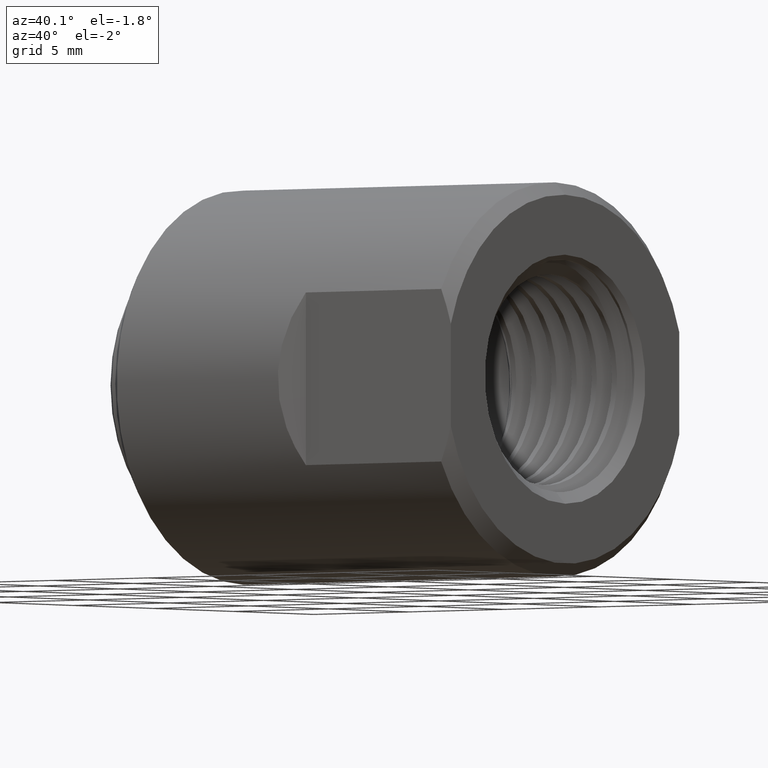
[diagram: clean part render]
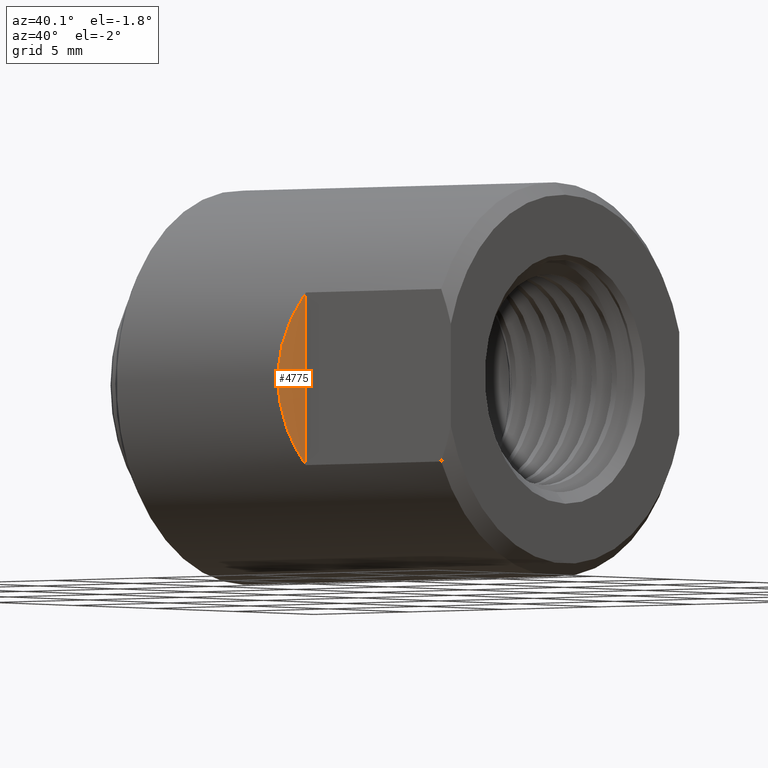
[diagram: same view with one face highlighted and labeled with its STEP entity id]
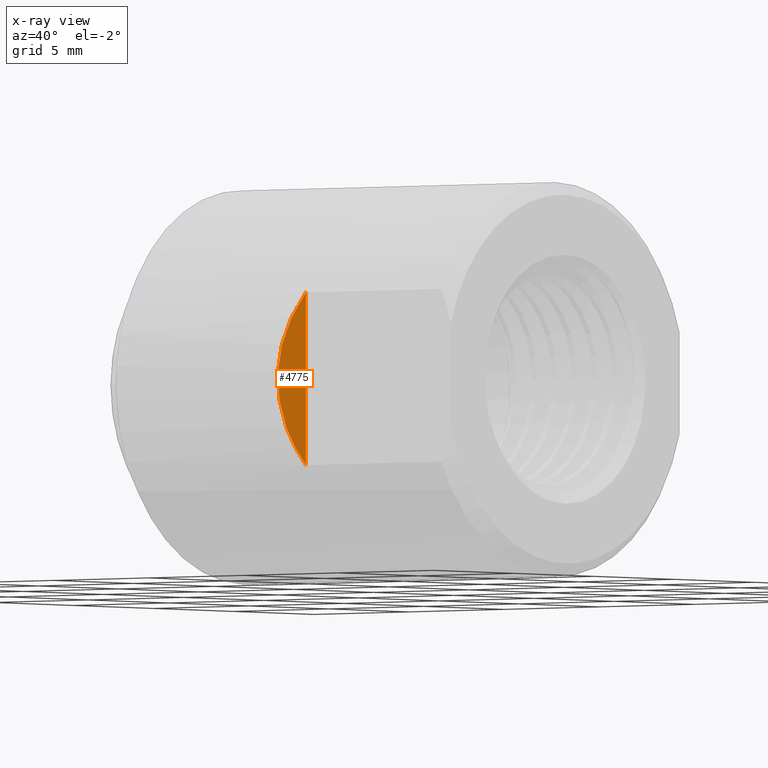
[diagram: x-ray of the same camera — body ghosted, the highlighted face saturated]
A machine part, auxiliary view. The second image highlights one B-rep face of the part: STEP entity #4775.
The next image is the same camera in x-ray: the body ghosted, the highlighted face saturated — about 0% of this face is hidden behind the body in this view.
In plain terms, the highlighted planar face has unit normal (-0.7071, 0.7071, 0).
Its self-contained STEP definition (entity closure, byte-faithful):
#980 = VERTEX_POINT ( 'NONE', #3332 ) ;
#1222 = EDGE_CURVE ( 'NONE', #3728, #980, #2930, .T. ) ;
#1496 = CARTESIAN_POINT ( 'NONE',  ( 0.2502422680412371703, -0.3232577319587630060, -0.04882472485371666671 ) ) ;
#2653 = ORIENTED_EDGE ( 'NONE', *, *, #10349, .T. ) ;
#2930 =( BOUNDED_CURVE ( )  B_SPLINE_CURVE ( 3, ( #11089, #11970, #1496, #7005 ),
 .UNSPECIFIED., .F., .F. ) 
 B_SPLINE_CURVE_WITH_KNOTS ( ( 4, 4 ),
 ( 5.829957573947540439, 6.736413040411632025 ),
 .UNSPECIFIED. ) 
 CURVE ( )  GEOMETRIC_REPRESENTATION_ITEM ( )  RATIONAL_B_SPLINE_CURVE ( ( 1.000000000000000000, 0.9326923076923074873, 0.9326923076923074873, 1.000000000000000000 ) ) 
 REPRESENTATION_ITEM ( '' )  );
#3173 = AXIS2_PLACEMENT_3D ( 'NONE', #12456, #6659, #7548 ) ;
#3332 = CARTESIAN_POINT ( 'NONE',  ( 0.2929999999999999272, -0.2804999999999999716, -0.1366153358887647884 ) ) ;
#3728 = VERTEX_POINT ( 'NONE', #8533 ) ;
#4775 = ADVANCED_FACE ( 'NONE', ( #11386 ), #8506, .F. ) ;
#5751 = CARTESIAN_POINT ( 'NONE',  ( 0.2929999999999999272, -0.2804999999999999716, -0.3119999999999999996 ) ) ;
#6108 = VECTOR ( 'NONE', #11320, 39.37007874015748143 ) ;
#6161 = EDGE_LOOP ( 'NONE', ( #7828, #2653 ) ) ;
#6659 = DIRECTION ( 'NONE',  ( -0.7071067811865499042, 0.7071067811865452413, 0.0000000000000000000 ) ) ;
#7005 = CARTESIAN_POINT ( 'NONE',  ( 0.2929999999999999272, -0.2804999999999999716, -0.1366153358887647884 ) ) ;
#7548 = DIRECTION ( 'NONE',  ( -0.7071067811865451302, -0.7071067811865497932, 0.0000000000000000000 ) ) ;
#7828 = ORIENTED_EDGE ( 'NONE', *, *, #1222, .T. ) ;
#8506 = PLANE ( 'NONE',  #3173 ) ;
#8533 = CARTESIAN_POINT ( 'NONE',  ( 0.2929999999999999272, -0.2804999999999999716, 0.1366153358887647884 ) ) ;
#8620 = LINE ( 'NONE', #5751, #6108 ) ;
#10349 = EDGE_CURVE ( 'NONE', #980, #3728, #8620, .T. ) ;
#11089 = CARTESIAN_POINT ( 'NONE',  ( 0.2929999999999999272, -0.2804999999999999716, 0.1366153358887647884 ) ) ;
#11320 = DIRECTION ( 'NONE',  ( -0.0000000000000000000, -0.0000000000000000000, 1.000000000000000000 ) ) ;
#11386 = FACE_OUTER_BOUND ( 'NONE', #6161, .T. ) ;
#11970 = CARTESIAN_POINT ( 'NONE',  ( 0.2502422680412371703, -0.3232577319587630060, 0.04882472485371675691 ) ) ;
#12456 = CARTESIAN_POINT ( 'NONE',  ( 0.2929999999999999272, -0.2804999999999999716, -0.3119999999999999996 ) ) ;